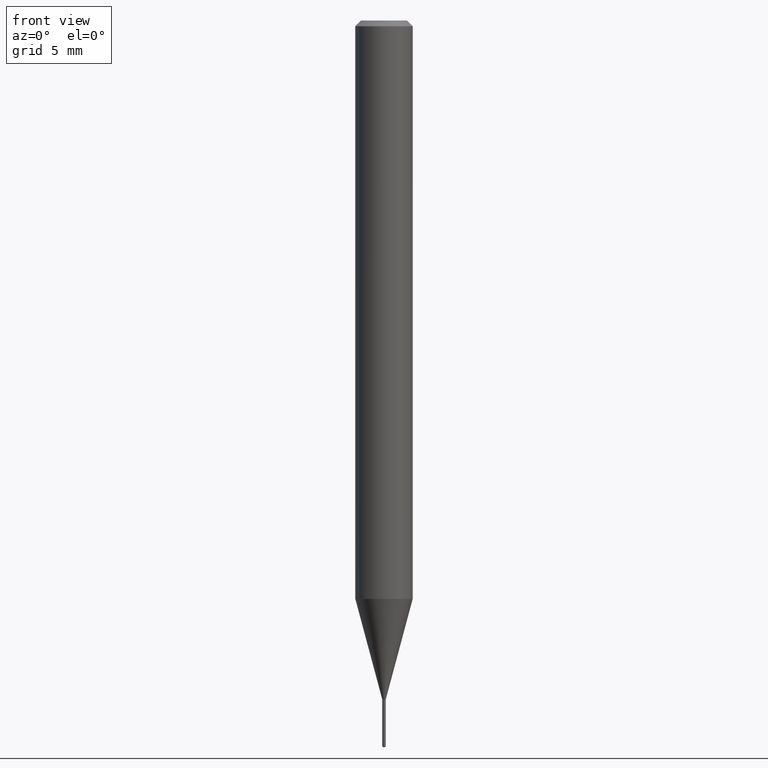
[diagram: clean part render]
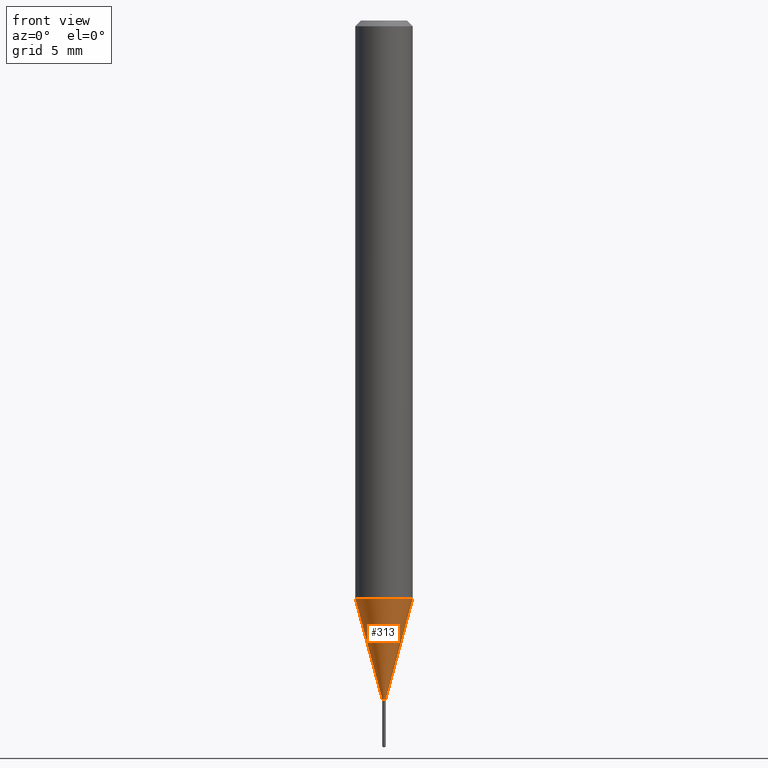
[diagram: same view with one face highlighted and labeled with its STEP entity id]
A machine part, front view. The second image highlights one B-rep face of the part: STEP entity #313.
In plain terms, the highlighted conical surface has half-angle 15 deg.
Its self-contained STEP definition (entity closure, byte-faithful):
#7 = ORIENTED_EDGE ( 'NONE', *, *, #191, .F. ) ;
#15 = AXIS2_PLACEMENT_3D ( 'NONE', #58, #178, #484 ) ;
#16 = CIRCLE ( 'NONE', #87, 0.003749999999999999861 ) ;
#17 = FACE_OUTER_BOUND ( 'NONE', #280, .T. ) ;
#50 = ORIENTED_EDGE ( 'NONE', *, *, #360, .F. ) ;
#58 = CARTESIAN_POINT ( 'NONE',  ( 3.415341734718161419E-29, -4.876202837828336250E-15, -1.396599999999999842 ) ) ;
#80 = VERTEX_POINT ( 'NONE', #305 ) ;
#85 = VECTOR ( 'NONE', #298, 39.37007874015748854 ) ;
#87 = AXIS2_PLACEMENT_3D ( 'NONE', #488, #382, #256 ) ;
#91 = CARTESIAN_POINT ( 'NONE',  ( -0.003749999999999999861, -4.850604929638985175E-15, -1.396599999999999842 ) ) ;
#103 = DIRECTION ( 'NONE',  ( 0.2588190451025211281, 1.565188264969622954E-15, 0.9659258262890679791 ) ) ;
#148 = CARTESIAN_POINT ( 'NONE',  ( -0.003749999999999999861, -4.849557485237332272E-15, -1.396599999999999842 ) ) ;
#149 = VECTOR ( 'NONE', #103, 39.37007874015748854 ) ;
#155 = CARTESIAN_POINT ( 'NONE',  ( 0.003749999999999999861, -4.902388947869659593E-15, -1.396599999999999842 ) ) ;
#157 = EDGE_CURVE ( 'NONE', #213, #327, #16, .T. ) ;
#178 = DIRECTION ( 'NONE',  ( -2.445468806185136597E-29, 3.491481338843145583E-15, 1.000000000000000000 ) ) ;
#187 = LINE ( 'NONE', #155, #149 ) ;
#191 = EDGE_CURVE ( 'NONE', #213, #253, #260, .T. ) ;
#213 = VERTEX_POINT ( 'NONE', #91 ) ;
#219 = AXIS2_PLACEMENT_3D ( 'NONE', #403, #304, #481 ) ;
#224 = CARTESIAN_POINT ( 'NONE',  ( -0.05905000000000013710, -3.736047020373655189E-15, -1.190217590341440701 ) ) ;
#251 = ORIENTED_EDGE ( 'NONE', *, *, #157, .T. ) ;
#252 = CARTESIAN_POINT ( 'NONE',  ( 0.003749999999999999861, -4.902388947869659593E-15, -1.396599999999999842 ) ) ;
#253 = VERTEX_POINT ( 'NONE', #224 ) ;
#256 = DIRECTION ( 'NONE',  ( 1.000000000000000000, -6.982962677686138915E-15, 0.000000000000000000 ) ) ;
#258 = EDGE_CURVE ( 'NONE', #327, #80, #187, .T. ) ;
#260 = LINE ( 'NONE', #148, #85 ) ;
#280 = EDGE_LOOP ( 'NONE', ( #7, #251, #294, #50 ) ) ;
#294 = ORIENTED_EDGE ( 'NONE', *, *, #258, .T. ) ;
#298 = DIRECTION ( 'NONE',  ( -0.2588190451025211281, 5.211531920934547886E-15, 0.9659258262890679791 ) ) ;
#304 = DIRECTION ( 'NONE',  ( -2.445468806185136597E-29, 3.491481338843145583E-15, 1.000000000000000000 ) ) ;
#305 = CARTESIAN_POINT ( 'NONE',  ( 0.05905000000000013710, -4.567966451957370391E-15, -1.190217590341440701 ) ) ;
#313 = ADVANCED_FACE ( 'NONE', ( #17 ), #421, .T. ) ;
#327 = VERTEX_POINT ( 'NONE', #252 ) ;
#344 = CIRCLE ( 'NONE', #219, 0.05905000000000014404 ) ;
#360 = EDGE_CURVE ( 'NONE', #253, #80, #344, .T. ) ;
#382 = DIRECTION ( 'NONE',  ( -2.445468806185136597E-29, 3.491481338843145583E-15, 1.000000000000000000 ) ) ;
#403 = CARTESIAN_POINT ( 'NONE',  ( 2.910639989752832993E-29, -4.155622505839995471E-15, -1.190217590341440701 ) ) ;
#421 = CONICAL_SURFACE ( 'NONE', #15, 0.003749999999999999861, 0.2617993877991498519 ) ;
#481 = DIRECTION ( 'NONE',  ( 1.000000000000000000, -6.982962677686263555E-15, 0.000000000000000000 ) ) ;
#484 = DIRECTION ( 'NONE',  ( 1.000000000000000000, -6.982962677686138915E-15, 0.000000000000000000 ) ) ;
#488 = CARTESIAN_POINT ( 'NONE',  ( 3.415341734718161419E-29, -4.876202837828336250E-15, -1.396599999999999842 ) ) ;